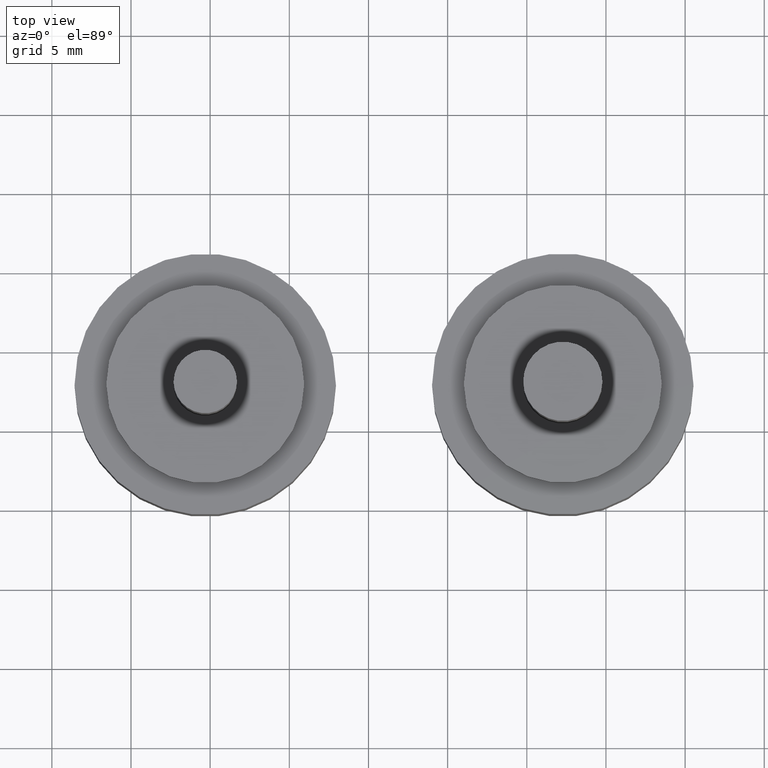
[diagram: clean part render]
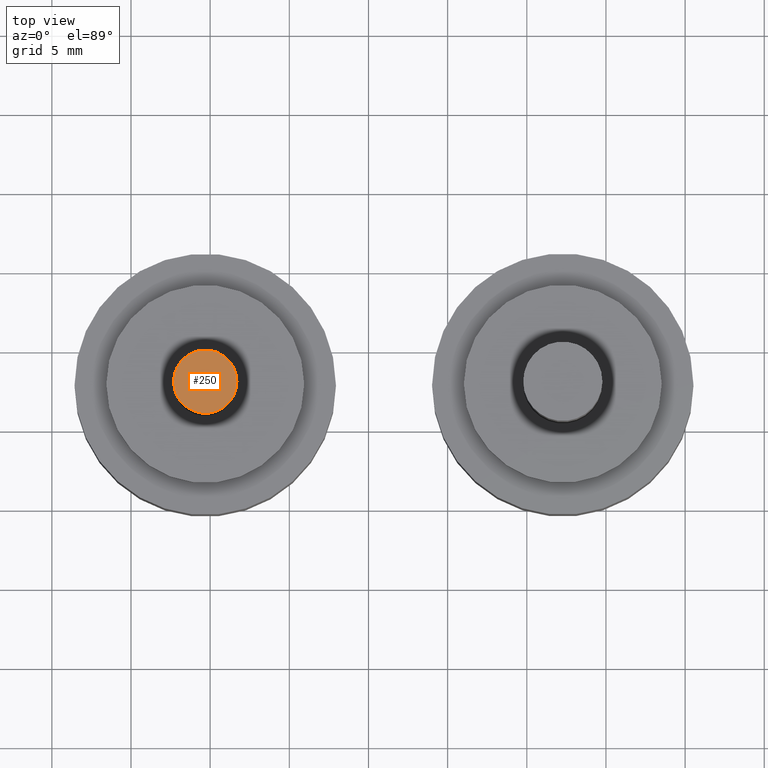
[diagram: same view with one face highlighted and labeled with its STEP entity id]
A machine part, top view. The second image highlights one B-rep face of the part: STEP entity #250.
In plain terms, the highlighted planar face has unit normal (0, 0, 1).
Its self-contained STEP definition (entity closure, byte-faithful):
#33=PLANE('',#279);
#66=FACE_OUTER_BOUND('',#91,.T.);
#91=EDGE_LOOP('',(#201));
#133=CIRCLE('',#277,2.);
#155=VERTEX_POINT('',#430);
#177=EDGE_CURVE('',#155,#155,#133,.T.);
#201=ORIENTED_EDGE('',*,*,#177,.T.);
#250=ADVANCED_FACE('',(#66),#33,.T.);
#277=AXIS2_PLACEMENT_3D('',#431,#330,#331);
#279=AXIS2_PLACEMENT_3D('',#434,#334,#335);
#330=DIRECTION('center_axis',(0.,0.,1.));
#331=DIRECTION('ref_axis',(-1.,0.,0.));
#334=DIRECTION('center_axis',(0.,0.,1.));
#335=DIRECTION('ref_axis',(1.,0.,0.));
#430=CARTESIAN_POINT('',(2.,2.44929359829471E-16,18.));
#431=CARTESIAN_POINT('Origin',(0.,0.,18.));
#434=CARTESIAN_POINT('Origin',(-1.36059011717576E-16,0.,18.));